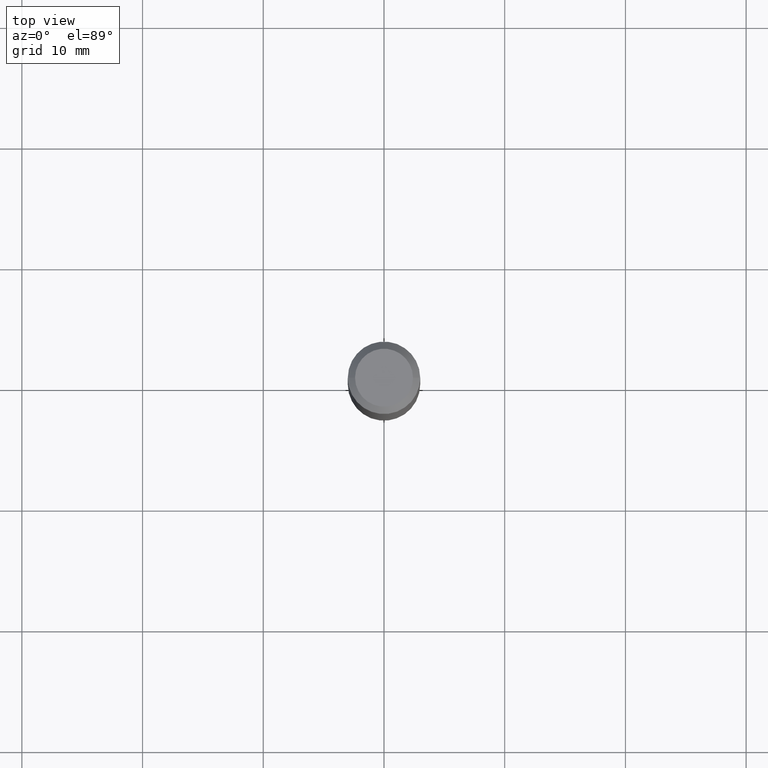
[diagram: clean part render]
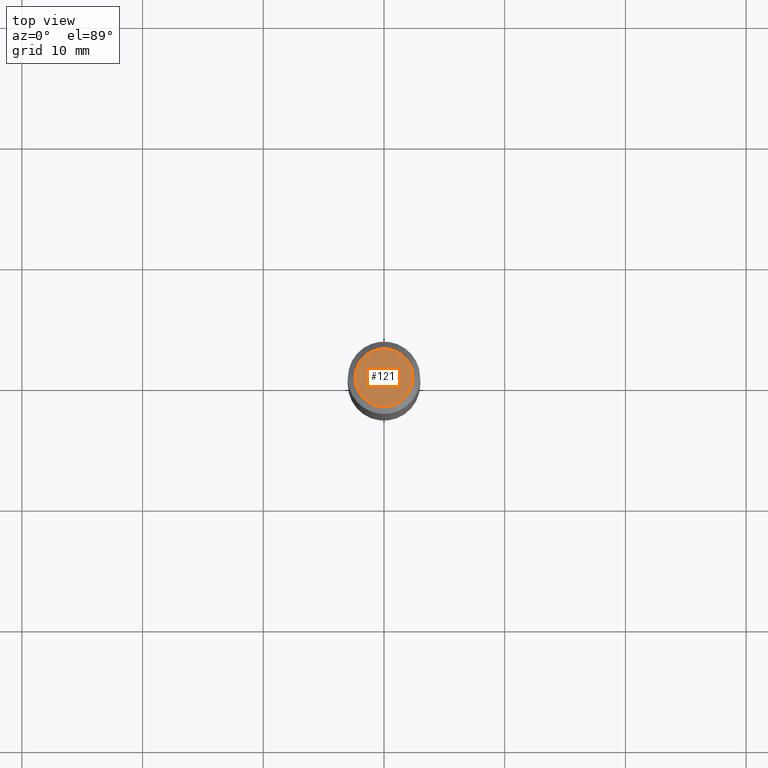
[diagram: same view with one face highlighted and labeled with its STEP entity id]
A machine part, top view. The second image highlights one B-rep face of the part: STEP entity #121.
In plain terms, the highlighted planar face has unit normal (0, -0, -1).
Its self-contained STEP definition (entity closure, byte-faithful):
#5 = CARTESIAN_POINT ( 'NONE',  ( 7.545787641473140628E-46, -1.077338491108201769E-31, -3.085620075131671975E-17 ) ) ;
#16 = DIRECTION ( 'NONE',  ( -1.000000000000000000, 6.982962677686265922E-15, -4.876176775795935793E-29 ) ) ;
#71 = DIRECTION ( 'NONE',  ( 1.000000000000000000, -6.982962677686267499E-15, 4.875432709231658792E-29 ) ) ;
#80 = EDGE_LOOP ( 'NONE', ( #338, #334 ) ) ;
#99 = EDGE_CURVE ( 'NONE', #307, #123, #263, .T. ) ;
#121 = ADVANCED_FACE ( 'NONE', ( #487 ), #456, .F. ) ;
#123 = VERTEX_POINT ( 'NONE', #323 ) ;
#164 = DIRECTION ( 'NONE',  ( -2.445468806185136597E-29, 3.491481338843145583E-15, 1.000000000000000000 ) ) ;
#167 = CARTESIAN_POINT ( 'NONE',  ( 0.09447999999999998066, -7.704367267948738690E-16, -3.085620075131172158E-17 ) ) ;
#182 = AXIS2_PLACEMENT_3D ( 'NONE', #276, #429, #71 ) ;
#262 = CIRCLE ( 'NONE', #474, 0.09447999999999998066 ) ;
#263 = CIRCLE ( 'NONE', #182, 0.09447999999999998066 ) ;
#276 = CARTESIAN_POINT ( 'NONE',  ( 7.545787641473140628E-46, -1.077338491108201769E-31, -3.085620075131671975E-17 ) ) ;
#295 = CARTESIAN_POINT ( 'NONE',  ( 3.772893820736570314E-46, -5.386692455541008845E-32, -1.542810037565835988E-17 ) ) ;
#307 = VERTEX_POINT ( 'NONE', #167 ) ;
#323 = CARTESIAN_POINT ( 'NONE',  ( -0.09447999999999998066, 7.009847083995354710E-16, -3.085620075132147757E-17 ) ) ;
#334 = ORIENTED_EDGE ( 'NONE', *, *, #99, .T. ) ;
#338 = ORIENTED_EDGE ( 'NONE', *, *, #455, .T. ) ;
#401 = DIRECTION ( 'NONE',  ( 2.438088387897960049E-29, -3.491481338843145188E-15, -1.000000000000000000 ) ) ;
#429 = DIRECTION ( 'NONE',  ( -2.445468806185136597E-29, 3.491481338843145583E-15, 1.000000000000000000 ) ) ;
#455 = EDGE_CURVE ( 'NONE', #123, #307, #262, .T. ) ;
#456 = PLANE ( 'NONE',  #503 ) ;
#474 = AXIS2_PLACEMENT_3D ( 'NONE', #5, #164, #479 ) ;
#479 = DIRECTION ( 'NONE',  ( 1.000000000000000000, -6.982962677686267499E-15, 4.875432709231658792E-29 ) ) ;
#487 = FACE_OUTER_BOUND ( 'NONE', #80, .T. ) ;
#503 = AXIS2_PLACEMENT_3D ( 'NONE', #295, #401, #16 ) ;